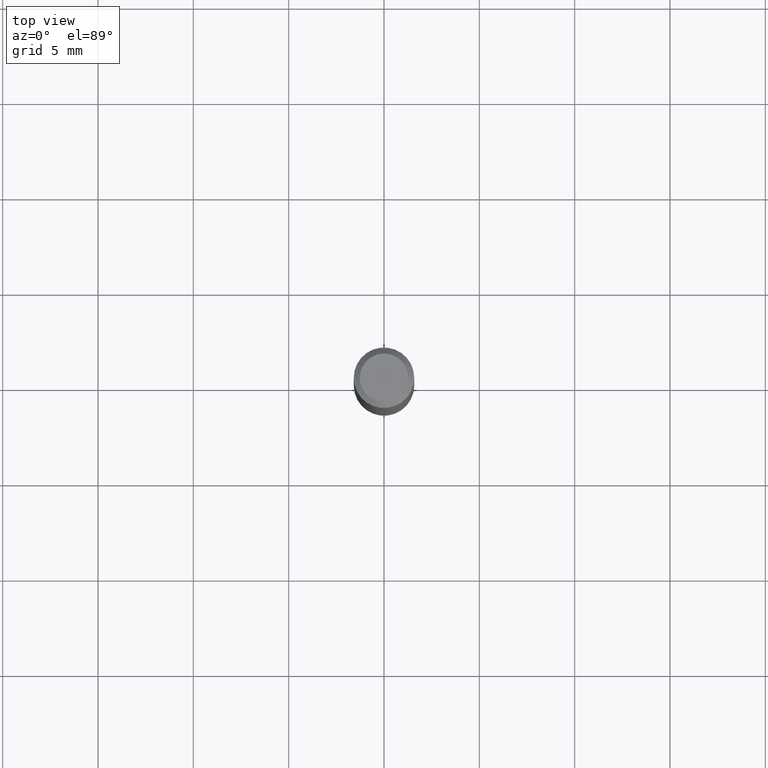
[diagram: clean part render]
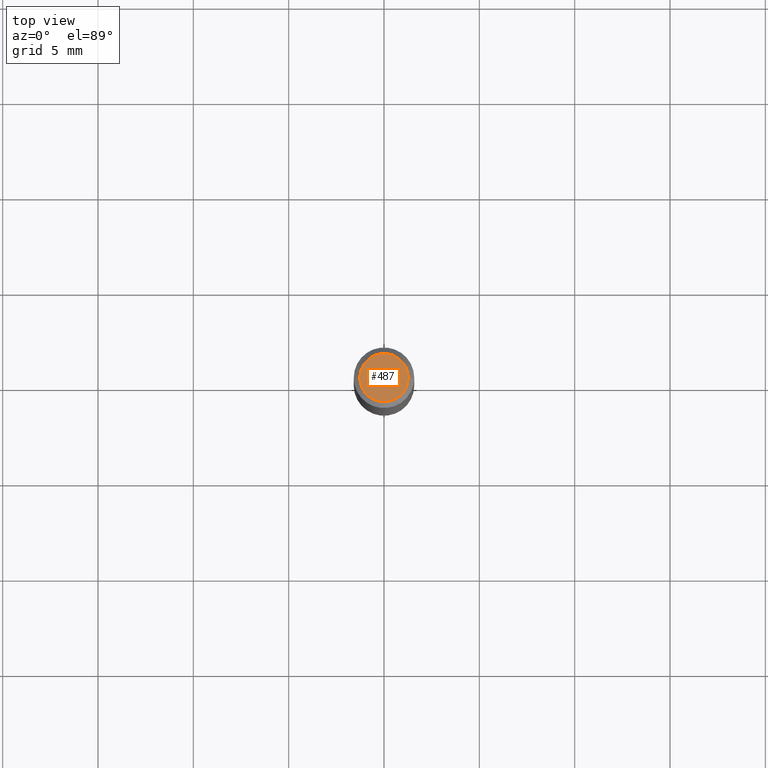
[diagram: same view with one face highlighted and labeled with its STEP entity id]
A machine part, top view. The second image highlights one B-rep face of the part: STEP entity #487.
In plain terms, the highlighted planar face has unit normal (0, -0, -1).
Its self-contained STEP definition (entity closure, byte-faithful):
#12 = CARTESIAN_POINT ( 'NONE',  ( 0.04999999999999999584, -4.077247707424184212E-16, -1.592040838888913461E-18 ) ) ;
#13 = ORIENTED_EDGE ( 'NONE', *, *, #340, .T. ) ;
#16 = PLANE ( 'NONE',  #282 ) ;
#19 = DIRECTION ( 'NONE',  ( -2.445468806185136597E-29, 3.491481338843145583E-15, 1.000000000000000000 ) ) ;
#75 = AXIS2_PLACEMENT_3D ( 'NONE', #404, #78, #269 ) ;
#78 = DIRECTION ( 'NONE',  ( -2.445468806185136597E-29, 3.491481338843145583E-15, 1.000000000000000000 ) ) ;
#88 = DIRECTION ( 'NONE',  ( 2.438088387897960049E-29, -3.491481338843145188E-15, -1.000000000000000000 ) ) ;
#102 = CIRCLE ( 'NONE', #446, 0.04999999999999999584 ) ;
#163 = DIRECTION ( 'NONE',  ( -1.000000000000000000, 6.982962677686265922E-15, -4.876176775795935793E-29 ) ) ;
#196 = CARTESIAN_POINT ( 'NONE',  ( 1.946643104841063088E-47, -2.779290439833033990E-33, -7.960204194457798443E-19 ) ) ;
#204 = CARTESIAN_POINT ( 'NONE',  ( -0.04999999999999999584, 3.709698922520826725E-16, -1.592040838894077649E-18 ) ) ;
#269 = DIRECTION ( 'NONE',  ( 1.000000000000000000, -6.982962677686265922E-15, 4.875957971899673662E-29 ) ) ;
#282 = AXIS2_PLACEMENT_3D ( 'NONE', #196, #88, #163 ) ;
#314 = CIRCLE ( 'NONE', #75, 0.04999999999999999584 ) ;
#338 = ORIENTED_EDGE ( 'NONE', *, *, #464, .T. ) ;
#340 = EDGE_CURVE ( 'NONE', #417, #386, #314, .T. ) ;
#386 = VERTEX_POINT ( 'NONE', #204 ) ;
#389 = FACE_OUTER_BOUND ( 'NONE', #454, .T. ) ;
#395 = CARTESIAN_POINT ( 'NONE',  ( 3.893286209682126177E-47, -5.558580879666067980E-33, -1.592040838891559689E-18 ) ) ;
#404 = CARTESIAN_POINT ( 'NONE',  ( 3.893286209682126177E-47, -5.558580879666067980E-33, -1.592040838891559689E-18 ) ) ;
#417 = VERTEX_POINT ( 'NONE', #12 ) ;
#428 = DIRECTION ( 'NONE',  ( 1.000000000000000000, -6.982962677686265922E-15, 4.875957971899673662E-29 ) ) ;
#446 = AXIS2_PLACEMENT_3D ( 'NONE', #395, #19, #428 ) ;
#454 = EDGE_LOOP ( 'NONE', ( #338, #13 ) ) ;
#464 = EDGE_CURVE ( 'NONE', #386, #417, #102, .T. ) ;
#487 = ADVANCED_FACE ( 'NONE', ( #389 ), #16, .F. ) ;